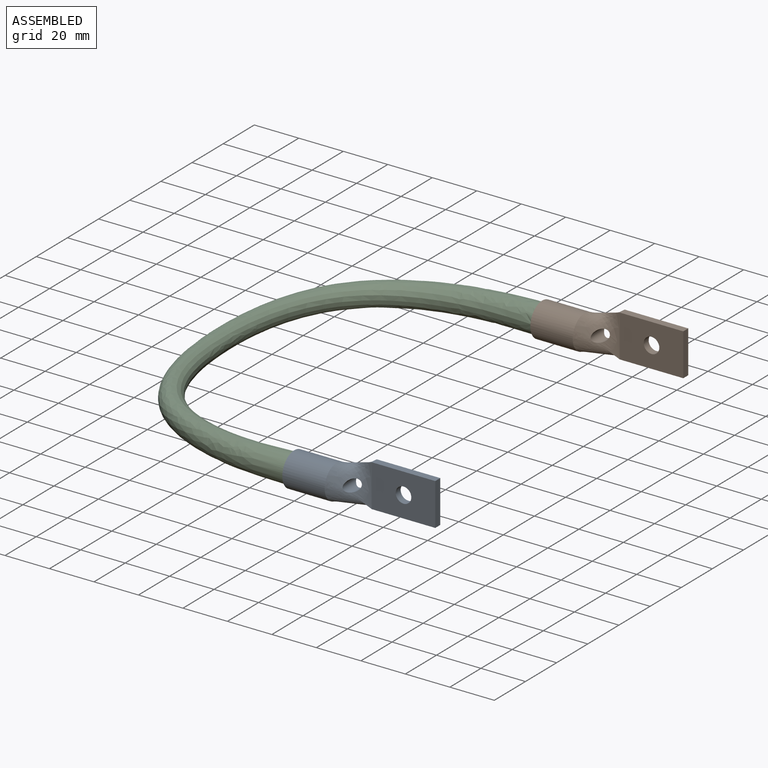
[diagram: assembled view]
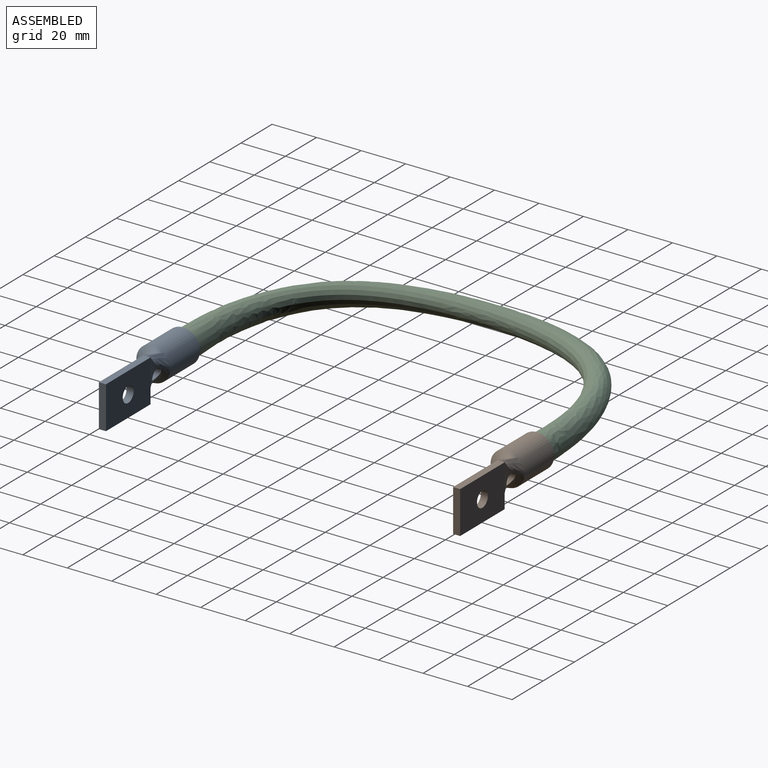
[diagram: assembled view, second angle]
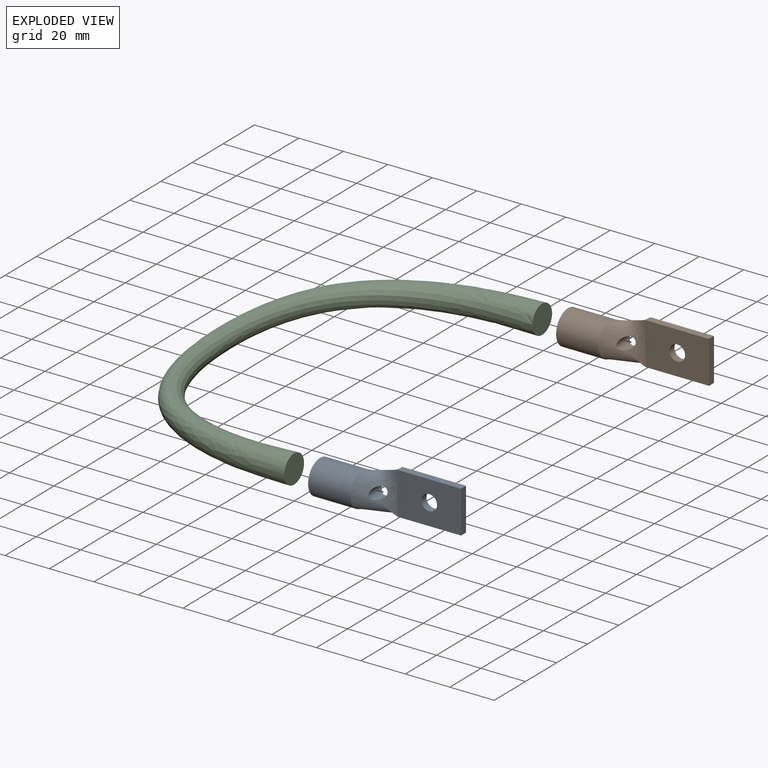
[diagram: exploded view]
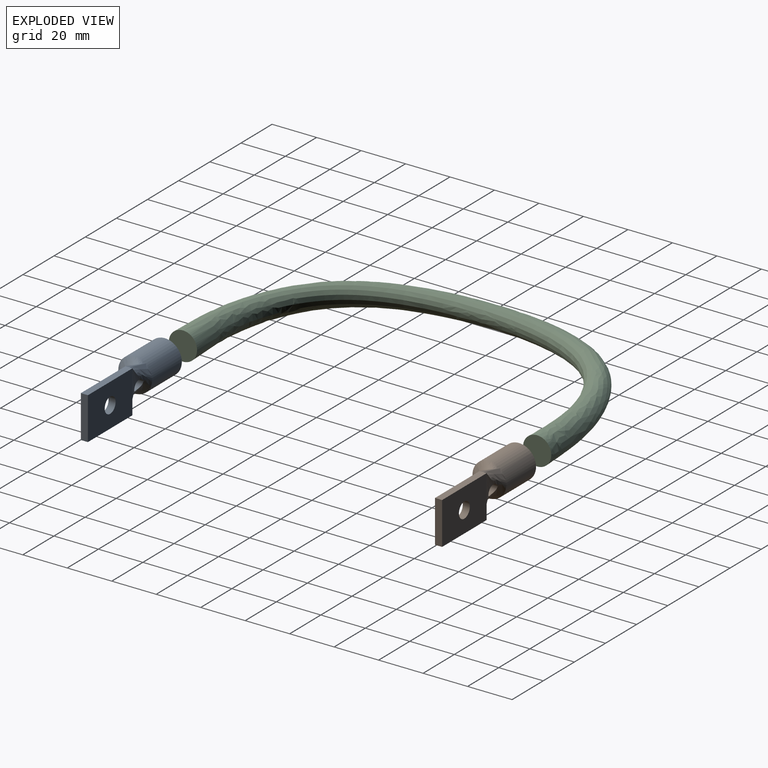
[diagram: exploded view, second angle]
ASSEMBLY  parts=3 mates=2
PART A: 13 faces, bbox 60.3x15.2x19.1 mm
  f0: bspline ~19.05x12.7mm, area 170.9mm2, adj f1,f3,f4,f9,f12
  f1: bspline ~15.24x14.29mm, area 106mm2, adj f0,f2,f4,f7,f12
  f2: bspline ~19.05x12.7mm, area 159mm2, adj f1,f3,f4,f10,f12
  f3: bspline ~14.29x12.7mm, area 86.6mm2, adj f0,f2,f4,f6,f12
  f4: cylinder r=7.62mm len=19.05mm, axis (-1,0,0), area 912.1mm2, adj f0,f1,f2,f3,f5
  f5: plane 15.24x15.24mm, normal (-1,0,0), area 182.4mm2, adj f4
  f6: plane 28.58x3.18mm, normal (0,0,1), area 90.7mm2, adj f3,f8,f9,f10
  f7: plane 28.58x3.18mm, normal (0,0,-1), area 90.7mm2, adj f1,f8,f9,f10
  f8: plane 19.05x3.18mm, normal (1,0,0), area 60.5mm2, adj f6,f7,f9,f10
  f9: plane 28.58x19.05mm, normal (0,-1,0), area 505.9mm2, adj f0,f6,f7,f8,f11
  f10: plane 28.58x19.05mm, normal (0,1,0), area 505.9mm2, adj f2,f6,f7,f8,f11
  f11: cylinder r=3.5mm len=7mm, axis (0,1,0), area 69.8mm2, adj f9,f10
  f12: cylinder r=2.54mm len=9.31mm, axis (0,-1,0), area 88.7mm2, adj f0,f1,f2,f3
PART B: 13 faces, bbox 60.3x15.2x19.1 mm
  f0: bspline ~19.05x12.7mm, area 170.9mm2, adj f1,f3,f4,f9,f12
  f1: bspline ~15.24x14.29mm, area 106mm2, adj f0,f2,f4,f7,f12
  f2: bspline ~19.05x12.7mm, area 159mm2, adj f1,f3,f4,f10,f12
  f3: bspline ~14.29x12.7mm, area 86.6mm2, adj f0,f2,f4,f6,f12
  f4: cylinder r=7.62mm len=19.05mm, axis (-1,0,0), area 912.1mm2, adj f0,f1,f2,f3,f5
  f5: plane 15.24x15.24mm, normal (-1,0,0), area 182.4mm2, adj f4
  f6: plane 28.58x3.18mm, normal (0,0,1), area 90.7mm2, adj f3,f8,f9,f10
  f7: plane 28.58x3.18mm, normal (0,0,-1), area 90.7mm2, adj f1,f8,f9,f10
  f8: plane 19.05x3.18mm, normal (1,0,0), area 60.5mm2, adj f6,f7,f9,f10
  f9: plane 28.58x19.05mm, normal (0,-1,0), area 505.9mm2, adj f0,f6,f7,f8,f11
  f10: plane 28.58x19.05mm, normal (0,1,0), area 505.9mm2, adj f2,f6,f7,f8,f11
  f11: cylinder r=3.5mm len=7mm, axis (0,1,0), area 69.8mm2, adj f9,f10
  f12: cylinder r=2.54mm len=9.31mm, axis (0,-1,0), area 88.7mm2, adj f0,f1,f2,f3
PART C: 3 faces, bbox 91.1x172x12.7 mm
  f0: plane 12.7x12.7mm, normal (1,0,0), area 126.7mm2, adj f2
  f1: plane 12.72x12.72mm, normal (1,0,0), area 126.7mm2, adj f2
  f2: bspline ~171.99x91.08mm, area 8922.2mm2, adj f0,f1
PLACE A at identity
PLACE B at identity
PLACE C at identity
MATE fastened C.f0 <-> A.f4  axis (1,0,0) through (0,0,0)mm
MATE fastened C.f1 <-> B.f4  axis (1,0,0) through (0,159.26,0)mm
